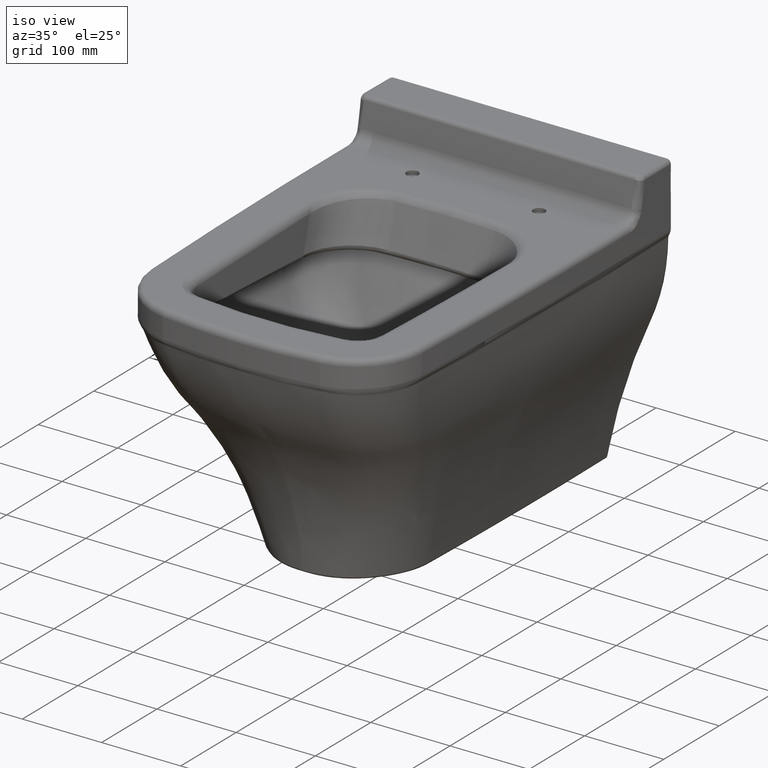
[diagram: clean part render]
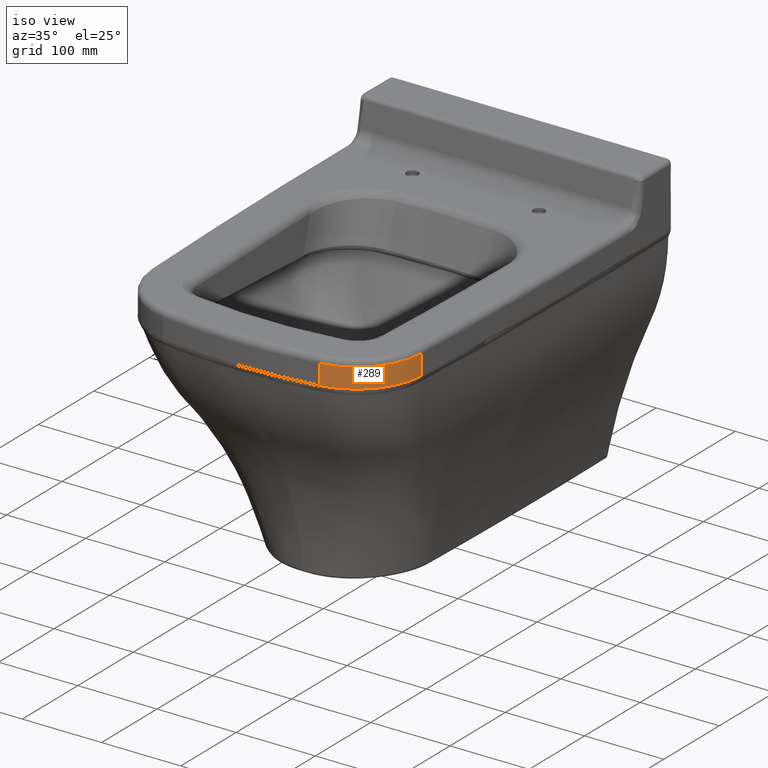
[diagram: same view with one face highlighted and labeled with its STEP entity id]
A machine part, iso view. The second image highlights one B-rep face of the part: STEP entity #289.
In plain terms, the highlighted cylindrical surface (partial cylindrical patch) has radius 85 mm, axis along (0, 0, -1).
Its self-contained STEP definition (entity closure, byte-faithful):
#135=CYLINDRICAL_SURFACE('',#2109,85.);
#166=LINE('',#3802,#184);
#173=LINE('',#5095,#192);
#184=VECTOR('',#2208,1.);
#192=VECTOR('',#2250,1.);
#220=CIRCLE('',#2108,85.);
#289=ADVANCED_FACE('',(#448),#135,.T.);
#448=FACE_OUTER_BOUND('',#588,.T.);
#588=EDGE_LOOP('',(#1048,#1049,#1050,#1051));
#779=B_SPLINE_CURVE_WITH_KNOTS('',3,(#5099,#5100,#5101,#5102,#5103,#5104,
#5105,#5106,#5107,#5108),.UNSPECIFIED.,.F.,.F.,(4,2,2,2,4),(0.,0.249999999999999,
0.499999999999999,0.749999999999999,1.),.UNSPECIFIED.);
#1048=ORIENTED_EDGE('',*,*,#1830,.T.);
#1049=ORIENTED_EDGE('',*,*,#1831,.T.);
#1050=ORIENTED_EDGE('',*,*,#1778,.T.);
#1051=ORIENTED_EDGE('',*,*,#1832,.T.);
#1588=VERTEX_POINT('',#3801);
#1589=VERTEX_POINT('',#3803);
#1621=VERTEX_POINT('',#5096);
#1622=VERTEX_POINT('',#5097);
#1778=EDGE_CURVE('',#1589,#1588,#166,.T.);
#1830=EDGE_CURVE('',#1621,#1622,#173,.T.);
#1831=EDGE_CURVE('',#1622,#1589,#220,.T.);
#1832=EDGE_CURVE('',#1588,#1621,#779,.T.);
#2108=AXIS2_PLACEMENT_3D('',#5098,#2251,#2252);
#2109=AXIS2_PLACEMENT_3D('',#5109,#2253,#2254);
#2208=DIRECTION('',(0.,0.,-1.));
#2250=DIRECTION('',(0.,0.,1.));
#2251=DIRECTION('',(0.,0.,-1.));
#2252=DIRECTION('',(1.,0.,0.));
#2253=DIRECTION('',(0.,0.,-1.));
#2254=DIRECTION('',(1.,0.,0.));
#3801=CARTESIAN_POINT('',(98.9974030765243,-547.6195456955,-32.8589604973056));
#3802=CARTESIAN_POINT('',(98.9974030765243,-547.6195456955,0.));
#3803=CARTESIAN_POINT('',(98.9974030765243,-547.6195456955,-7.5));
#5095=CARTESIAN_POINT('',(171.313219735348,-467.255228076815,0.));
#5096=CARTESIAN_POINT('',(171.313219735348,-467.255228076815,-32.8584416593726));
#5097=CARTESIAN_POINT('',(171.313219735348,-467.255228076815,-7.5));
#5098=CARTESIAN_POINT('',(86.3936150912839,-463.55918328596,-7.5));
#5099=CARTESIAN_POINT('',(98.9974030765171,-547.619545695501,-32.8589604973056));
#5100=CARTESIAN_POINT('',(108.653634460971,-546.171715950096,-32.8589172608149));
#5101=CARTESIAN_POINT('',(118.055695053212,-543.044098257333,-32.8588740243242));
#5102=CARTESIAN_POINT('',(135.254414164316,-533.794226743386,-32.8587875513428));
#5103=CARTESIAN_POINT('',(143.047052567419,-527.674135034047,-32.8587443148522));
#5104=CARTESIAN_POINT('',(156.109618763887,-513.157750275778,-32.8586578418708));
#5105=CARTESIAN_POINT('',(161.376493246833,-504.764850360186,-32.8586146053801));
#5106=CARTESIAN_POINT('',(168.766870349278,-486.688944065595,-32.8585281323987));
#5107=CARTESIAN_POINT('',(170.888645504582,-477.010162840535,-32.858484895908));
#5108=CARTESIAN_POINT('',(171.313219735347,-467.255228076818,-32.8584416594173));
#5109=CARTESIAN_POINT('',(86.3936150912839,-463.55918328596,0.));